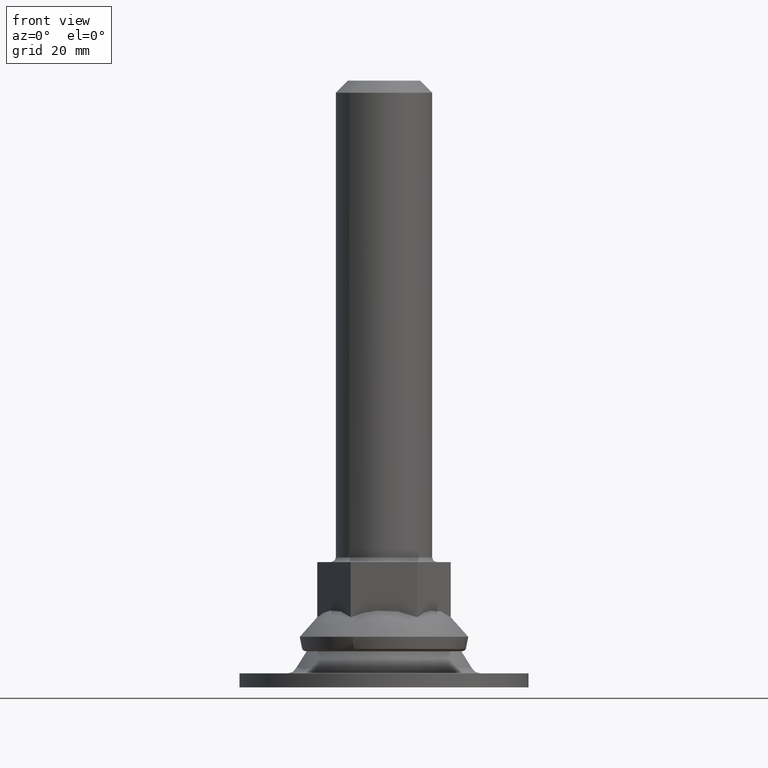
[diagram: clean part render]
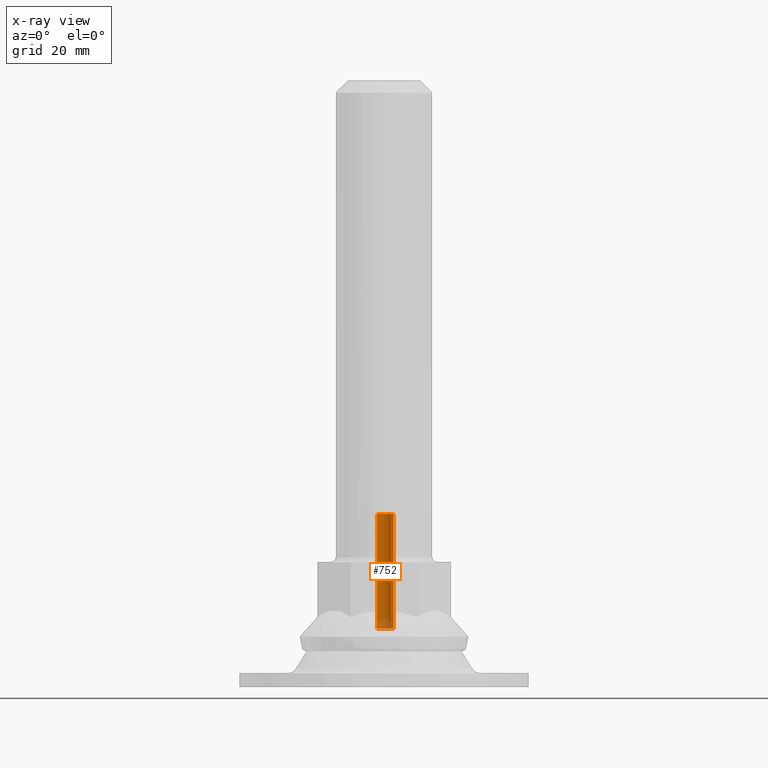
[diagram: x-ray — body ghosted, one internal face saturated and labeled with its STEP entity id]
A machine part, front view, then the same camera in x-ray: the body is ghosted and one INTERNAL B-rep face — a face not visible from any outside direction — is saturated and labeled: STEP entity #752.
In plain terms, the highlighted face is a freeform B-spline surface patch.
Its self-contained STEP definition (entity closure, byte-faithful):
#609=CARTESIAN_POINT('',(2.0,0.0,36.0));
#610=VERTEX_POINT('',#609);
#611=CARTESIAN_POINT('',(1.450748416679210,-1.376708629547459,36.0));
#612=VERTEX_POINT('',#611);
#613=CARTESIAN_POINT('',(2.0,0.0,36.0));
#614=CARTESIAN_POINT('',(2.000170109318599,-0.237278697913708,36.000000000000028));
#615=CARTESIAN_POINT('',(1.908882975878044,-0.743312871656393,36.000000000000007));
#616=CARTESIAN_POINT('',(1.636059114485413,-1.181824252381239,35.999999999999972));
#617=CARTESIAN_POINT('',(1.450748416679210,-1.376708629547459,36.0));
#618=B_SPLINE_CURVE_WITH_KNOTS('',3,(#613,#614,#615,#616,#617),.UNSPECIFIED.,.F.,.U.,(4,1,4),(0.000000056931504,0.711799477383564,1.518471674635987),.UNSPECIFIED.);
#619=EDGE_CURVE('',#610,#612,#618,.T.);
#621=CARTESIAN_POINT('',(0.000002384099441,1.999999999998579,36.0));
#622=VERTEX_POINT('',#621);
#623=CARTESIAN_POINT('',(0.000002384099441,1.999999999998579,36.0));
#624=CARTESIAN_POINT('',(0.196362687845345,2.000088782517534,36.000000000000021));
#625=CARTESIAN_POINT('',(0.556287297283325,1.946548613648106,36.000000000000007));
#626=CARTESIAN_POINT('',(1.023527478055000,1.739441009159089,36.000000000000007));
#627=CARTESIAN_POINT('',(1.390363479510940,1.460319323533012,35.999999999999957));
#628=CARTESIAN_POINT('',(1.655300574746739,1.145388279058872,36.000000000000021));
#629=CARTESIAN_POINT('',(1.916719080554054,0.670628367764248,35.999999999999972));
#630=CARTESIAN_POINT('',(2.000377710308947,0.278240622281164,36.000000000000057));
#631=CARTESIAN_POINT('',(2.0,0.0,36.0));
#632=B_SPLINE_CURVE_WITH_KNOTS('',3,(#623,#624,#625,#626,#627,#628,#629,#630,#631),.UNSPECIFIED.,.F.,.U.,(4,1,1,1,1,1,4),(0.000000247452647,0.589061458313119,1.079969560283872,1.521781304222333,1.963538059695612,2.307161990165178,3.141670144939344),.UNSPECIFIED.);
#633=EDGE_CURVE('',#622,#610,#632,.T.);
#635=CARTESIAN_POINT('',(-1.450748416679213,1.376708629547462,36.0));
#636=VERTEX_POINT('',#635);
#637=CARTESIAN_POINT('',(-1.450748416679213,1.376708629547462,36.0));
#638=CARTESIAN_POINT('',(-1.322771156639825,1.511677109802077,36.000000000000021));
#639=CARTESIAN_POINT('',(-1.068863415660302,1.713533531476278,36.000000000000007));
#640=CARTESIAN_POINT('',(-0.574789766591753,1.940841955772046,36.000000000000043));
#641=CARTESIAN_POINT('',(-0.219828078077253,2.000142833693965,35.999999999999979));
#642=CARTESIAN_POINT('',(0.000002384099441,1.999999999998579,36.0));
#643=B_SPLINE_CURVE_WITH_KNOTS('',3,(#637,#638,#639,#640,#641,#642),.UNSPECIFIED.,.F.,.U.,(4,1,1,4),(0.000000058884865,0.557977889229801,0.963761034100227,1.623201992738532),.UNSPECIFIED.);
#644=EDGE_CURVE('',#636,#622,#643,.T.);
#682=CARTESIAN_POINT('',(-1.450748742024575,1.376709151387508,36.595579117749843));
#683=CARTESIAN_POINT('',(-0.074039590637067,2.827457893412082,36.595579117749836));
#684=CARTESIAN_POINT('',(1.376709151387508,1.450748742024575,36.595579117749843));
#685=CARTESIAN_POINT('',(2.827457893412082,0.074039590637067,36.595579117749836));
#686=CARTESIAN_POINT('',(1.450748742024575,-1.376709151387508,36.595579117749843));
#687=CARTESIAN_POINT('',(-1.450748742024575,1.376709151387508,11.566366694312920));
#688=CARTESIAN_POINT('',(-0.074039590637067,2.827457893412082,11.566366694312917));
#689=CARTESIAN_POINT('',(1.376709151387508,1.450748742024575,11.566366694312920));
#690=CARTESIAN_POINT('',(2.827457893412082,0.074039590637067,11.566366694312919));
#691=CARTESIAN_POINT('',(1.450748742024575,-1.376709151387508,11.566366694312920));
#699=(BOUNDED_SURFACE()B_SPLINE_SURFACE(2,1,((#682,#687),(#683,#688),(#684,#689),(#685,#690),(#686,#691)),.UNSPECIFIED.,.F.,.F.,.U.)B_SPLINE_SURFACE_WITH_KNOTS((3,2,3),(2,2),(0.0,3.313708498984759,6.627416997969519),(0.0,25.029212423436920),.UNSPECIFIED.)GEOMETRIC_REPRESENTATION_ITEM()RATIONAL_B_SPLINE_SURFACE(((1.0,1.0),(0.707106781186548,0.707106781186548),(1.0,1.0),(0.707106781186548,0.707106781186548),(1.0,1.0)))REPRESENTATION_ITEM('')SURFACE());
#700=CARTESIAN_POINT('',(-1.450748335388608,1.376708765498746,12.176835480833351));
#701=VERTEX_POINT('',#700);
#702=CARTESIAN_POINT('',(-1.450748416679213,1.376708629547462,36.0));
#703=CARTESIAN_POINT('',(-1.450748335388608,1.376708765498746,12.176835480833351));
#704=QUASI_UNIFORM_CURVE('',1,(#702,#703),.UNSPECIFIED.,.F.,.U.);
#705=EDGE_CURVE('',#636,#701,#704,.T.);
#706=ORIENTED_EDGE('',*,*,#705,.F.);
#707=ORIENTED_EDGE('',*,*,#644,.T.);
#708=ORIENTED_EDGE('',*,*,#633,.T.);
#709=ORIENTED_EDGE('',*,*,#619,.T.);
#710=CARTESIAN_POINT('',(1.450748335388605,-1.376708765498744,12.176835480833359));
#711=VERTEX_POINT('',#710);
#712=CARTESIAN_POINT('',(1.450748416679210,-1.376708629547459,36.0));
#713=CARTESIAN_POINT('',(1.450748335388605,-1.376708765498744,12.176835480833359));
#714=QUASI_UNIFORM_CURVE('',1,(#712,#713),.UNSPECIFIED.,.F.,.U.);
#715=EDGE_CURVE('',#612,#711,#714,.T.);
#716=ORIENTED_EDGE('',*,*,#715,.T.);
#717=CARTESIAN_POINT('',(2.0,0.0,12.176835290006499));
#718=VERTEX_POINT('',#717);
#719=CARTESIAN_POINT('',(2.0,0.0,12.176835290006499));
#720=CARTESIAN_POINT('',(2.000016196276025,-0.142354658413163,12.176835309738410));
#721=CARTESIAN_POINT('',(1.966118727757083,-0.458697247132504,12.176835353586950));
#722=CARTESIAN_POINT('',(1.793954571867208,-0.939252984159094,12.176835420197220));
#723=CARTESIAN_POINT('',(1.581459911666057,-1.239074356766325,12.176835461755710));
#724=CARTESIAN_POINT('',(1.450748335388605,-1.376708765498744,12.176835480833359));
#725=B_SPLINE_CURVE_WITH_KNOTS('',3,(#719,#720,#721,#722,#723,#724),.UNSPECIFIED.,.F.,.U.,(4,1,1,4),(0.000000056933032,0.427072012627599,0.949044602535694,1.518471842360289),.UNSPECIFIED.);
#726=EDGE_CURVE('',#718,#711,#725,.T.);
#727=ORIENTED_EDGE('',*,*,#726,.F.);
#728=CARTESIAN_POINT('',(0.000002384099432,1.999999999998579,12.176835290006499));
#729=VERTEX_POINT('',#728);
#730=CARTESIAN_POINT('',(0.000002384099432,1.999999999998579,12.176835290006499));
#731=CARTESIAN_POINT('',(0.278246627221795,2.000381521040815,12.176835290006490));
#732=CARTESIAN_POINT('',(0.670620073793069,1.916706100517327,12.176835290006530));
#733=CARTESIAN_POINT('',(1.174181515169416,1.639479338324966,12.176835290006480));
#734=CARTESIAN_POINT('',(1.545329492319931,1.311424397399346,12.176835290006490));
#735=CARTESIAN_POINT('',(1.899310096327993,0.752417557222539,12.176835290006510));
#736=CARTESIAN_POINT('',(2.000375269933802,0.278230449565482,12.176835290006480));
#737=CARTESIAN_POINT('',(2.0,0.0,12.176835290006499));
#738=B_SPLINE_CURVE_WITH_KNOTS('',3,(#730,#731,#732,#733,#734,#735,#736,#737),.UNSPECIFIED.,.F.,.U.,(4,1,1,1,1,4),(0.000000247452192,0.834508401216129,1.178132329502218,1.718066394772581,2.307161990165092,3.141670144939351),.UNSPECIFIED.);
#739=EDGE_CURVE('',#729,#718,#738,.T.);
#740=ORIENTED_EDGE('',*,*,#739,.F.);
#741=CARTESIAN_POINT('',(-1.450748335388608,1.376708765498746,12.176835480833351));
#742=CARTESIAN_POINT('',(-1.299516132951671,1.536234084521677,12.176835460940790));
#743=CARTESIAN_POINT('',(-0.984830948847718,1.773626819017674,12.176835419548221));
#744=CARTESIAN_POINT('',(-0.473408586938482,1.963174628140625,12.176835352277360));
#745=CARTESIAN_POINT('',(-0.152169546662190,2.000024629995760,12.176835310022730));
#746=CARTESIAN_POINT('',(0.000002384099432,1.999999999998579,12.176835290006499));
#747=B_SPLINE_CURVE_WITH_KNOTS('',3,(#741,#742,#743,#744,#745,#746),.UNSPECIFIED.,.F.,.U.,(4,1,1,4),(0.000000058883050,0.659440960300757,1.166673258643890,1.623201852201158),.UNSPECIFIED.);
#748=EDGE_CURVE('',#701,#729,#747,.T.);
#749=ORIENTED_EDGE('',*,*,#748,.F.);
#750=EDGE_LOOP('',(#706,#707,#708,#709,#716,#727,#740,#749));
#751=FACE_OUTER_BOUND('',#750,.T.);
#752=ADVANCED_FACE('',(#751),#699,.T.);